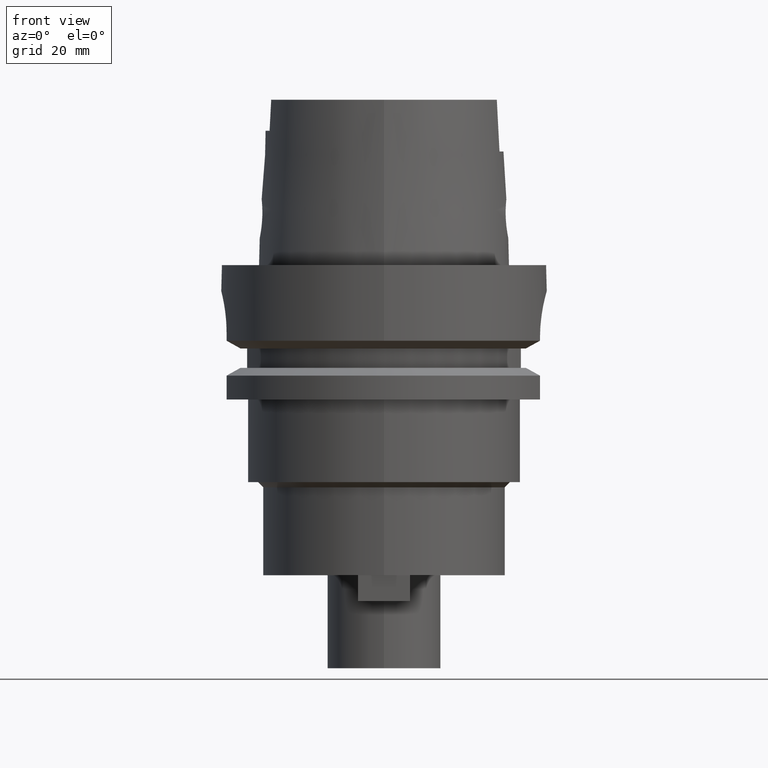
[diagram: clean part render]
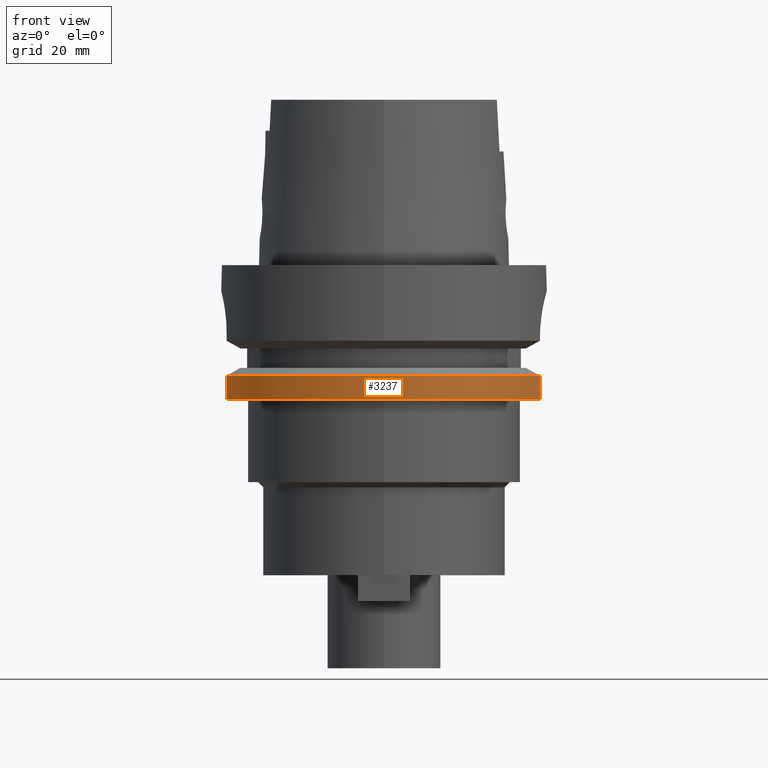
[diagram: same view with one face highlighted and labeled with its STEP entity id]
A machine part, front view. The second image highlights one B-rep face of the part: STEP entity #3237.
In plain terms, the highlighted cylindrical surface (partial cylindrical patch) has radius 31.5 mm, axis along (0, 0, -1).
Its self-contained STEP definition (entity closure, byte-faithful):
#971=CARTESIAN_POINT('',(0.E0,1.683889348828E-14,-2.6E1));
#972=DIRECTION('',(0.E0,0.E0,1.E0));
#973=DIRECTION('',(-9.672125547036E-1,-2.539682539683E-1,0.E0));
#974=AXIS2_PLACEMENT_3D('',#971,#972,#973);
#979=CARTESIAN_POINT('',(0.E0,1.683889348828E-14,-2.6E1));
#980=DIRECTION('',(0.E0,0.E0,1.E0));
#981=DIRECTION('',(0.E0,-1.E0,0.E0));
#982=AXIS2_PLACEMENT_3D('',#979,#980,#981);
#1136=DIRECTION('',(-5.925787979310E-9,2.256745664531E-8,1.E0));
#1137=VECTOR('',#1136,4.622501872221E0);
#1138=CARTESIAN_POINT('',(-3.046719547316E1,-8.E0,-2.6E1));
#1139=LINE('',#1138,#1137);
#1143=DIRECTION('',(4.477971048131E-8,1.501959830877E-7,-1.E0));
#1144=VECTOR('',#1143,4.622495325632E0);
#1145=CARTESIAN_POINT('',(3.018691748925E1,-9.000000694280E0,
-2.137750467437E1));
#1146=LINE('',#1145,#1144);
#1244=CARTESIAN_POINT('',(0.E0,0.E0,-2.137749907476E1));
#1245=DIRECTION('',(0.E0,0.E0,-1.E0));
#1246=DIRECTION('',(9.583148474999E-1,-2.857142857143E-1,0.E0));
#1247=AXIS2_PLACEMENT_3D('',#1244,#1245,#1246);
#1252=CARTESIAN_POINT('',(0.E0,0.E0,-2.137749907476E1));
#1253=DIRECTION('',(0.E0,0.E0,-1.E0));
#1254=DIRECTION('',(0.E0,-1.E0,0.E0));
#1255=AXIS2_PLACEMENT_3D('',#1252,#1253,#1254);
#2279=CARTESIAN_POINT('',(-3.046719547316E1,-8.E0,-2.6E1));
#2280=VERTEX_POINT('',#2279);
#2281=CARTESIAN_POINT('',(-1.569039500652E-14,-3.15E1,-2.6E1));
#2282=CARTESIAN_POINT('',(3.018691769625E1,-9.E0,-2.6E1));
#2283=VERTEX_POINT('',#2281);
#2284=VERTEX_POINT('',#2282);
#2452=CARTESIAN_POINT('',(-3.046719550055E1,-7.999999895682E0,
-2.137749812778E1));
#2453=VERTEX_POINT('',#2452);
#2454=CARTESIAN_POINT('',(3.018691769625E1,-9.E0,-2.137749907476E1));
#2455=CARTESIAN_POINT('',(0.E0,-3.15E1,-2.137749907476E1));
#2456=VERTEX_POINT('',#2454);
#2457=VERTEX_POINT('',#2455);
#3221=CARTESIAN_POINT('',(0.E0,1.683889348828E-14,3.75E1));
#3222=DIRECTION('',(0.E0,0.E0,-1.E0));
#3223=DIRECTION('',(0.E0,-1.E0,0.E0));
#3224=AXIS2_PLACEMENT_3D('',#3221,#3222,#3223);
#3225=CYLINDRICAL_SURFACE('',#3224,3.15E1);
#3227=ORIENTED_EDGE('',*,*,#3226,.T.);
#3229=ORIENTED_EDGE('',*,*,#3228,.F.);
#3231=ORIENTED_EDGE('',*,*,#3230,.F.);
#3232=ORIENTED_EDGE('',*,*,#3211,.T.);
#3233=ORIENTED_EDGE('',*,*,#3104,.F.);
#3234=ORIENTED_EDGE('',*,*,#3102,.F.);
#3235=EDGE_LOOP('',(#3227,#3229,#3231,#3232,#3233,#3234));
#3236=FACE_OUTER_BOUND('',#3235,.F.);
#975=CIRCLE('',#974,3.15E1);
#983=CIRCLE('',#982,3.15E1);
#1248=CIRCLE('',#1247,3.15E1);
#1256=CIRCLE('',#1255,3.15E1);
#3102=EDGE_CURVE('',#2280,#2283,#975,.T.);
#3104=EDGE_CURVE('',#2283,#2284,#983,.T.);
#3211=EDGE_CURVE('',#2456,#2284,#1146,.T.);
#3226=EDGE_CURVE('',#2280,#2453,#1139,.T.);
#3228=EDGE_CURVE('',#2457,#2453,#1256,.T.);
#3230=EDGE_CURVE('',#2456,#2457,#1248,.T.);
#3237=ADVANCED_FACE('',(#3236),#3225,.T.);